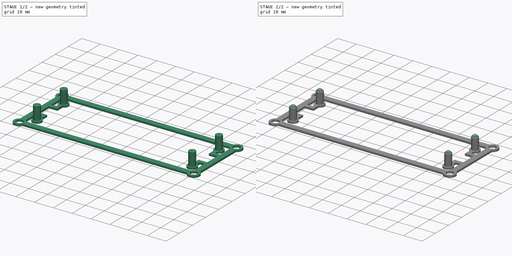
[diagram: build sequence overview — one tinted view per stage of 2, left to right]
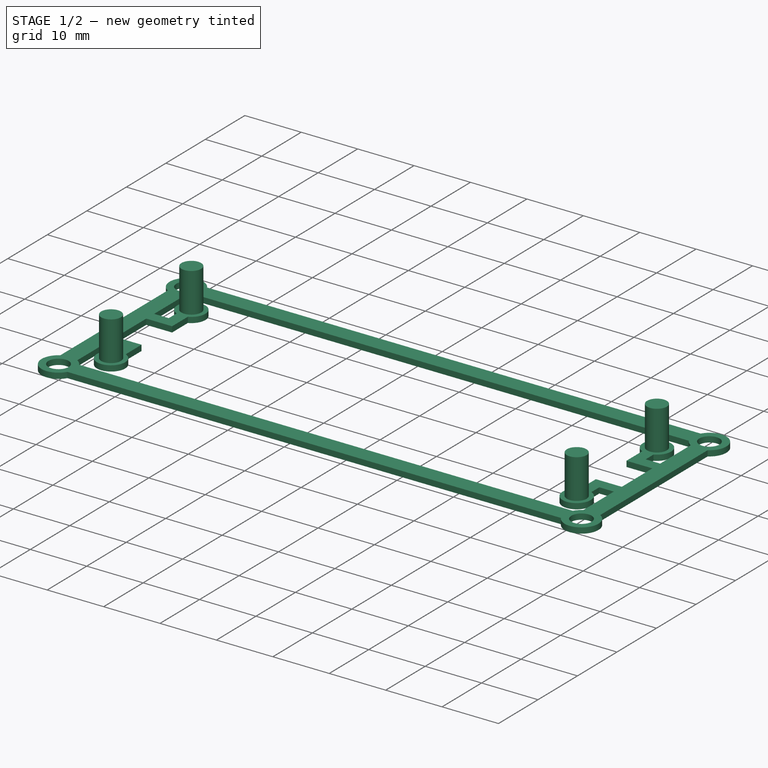
[diagram: stage 1 of 2 — iso view after this stage's code; geometry added in this stage tinted green]
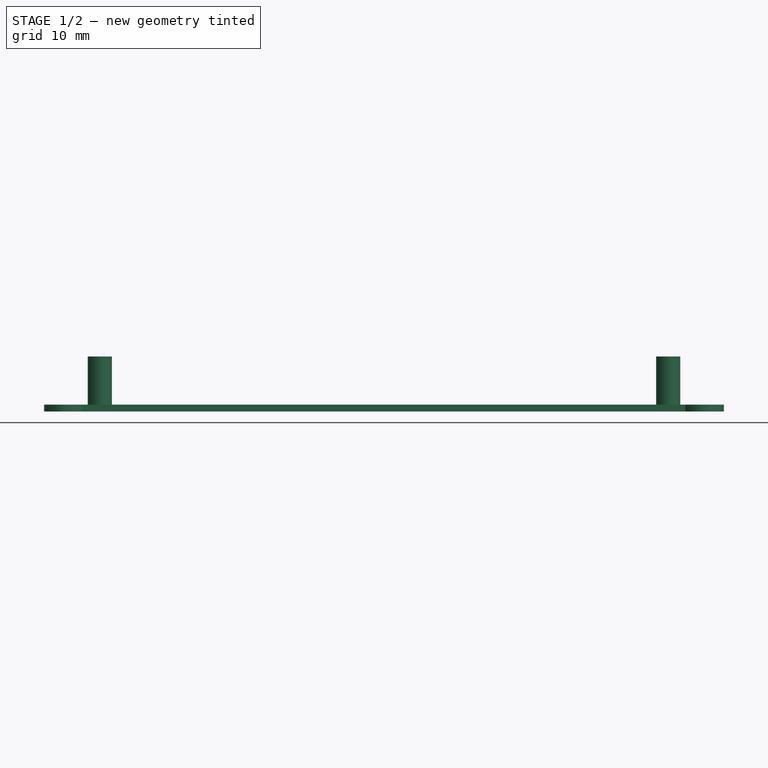
[diagram: stage 1 of 2 — front view after this stage's code; geometry added in this stage tinted green]
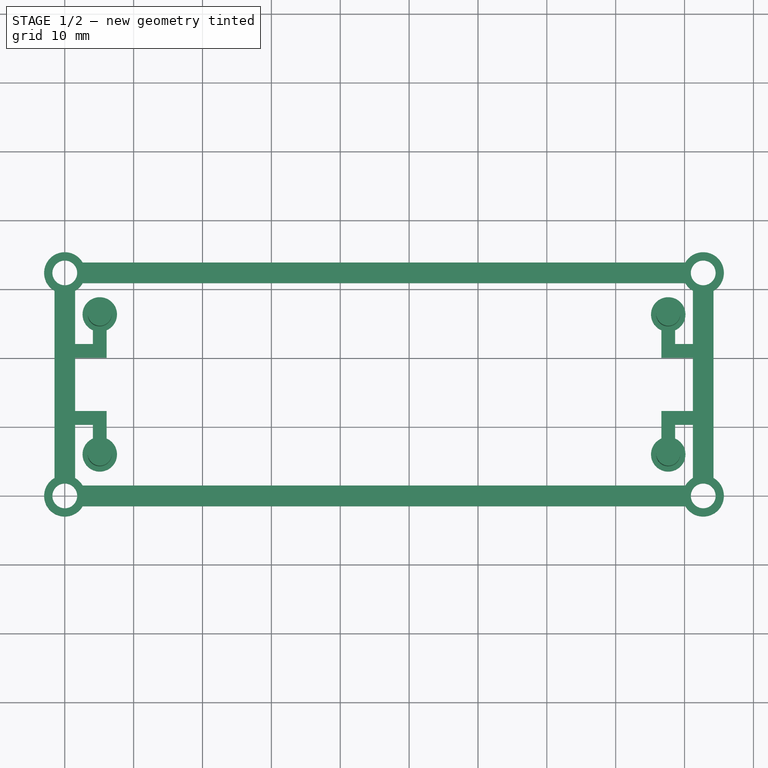
[diagram: stage 1 of 2 — top view after this stage's code; geometry added in this stage tinted green]
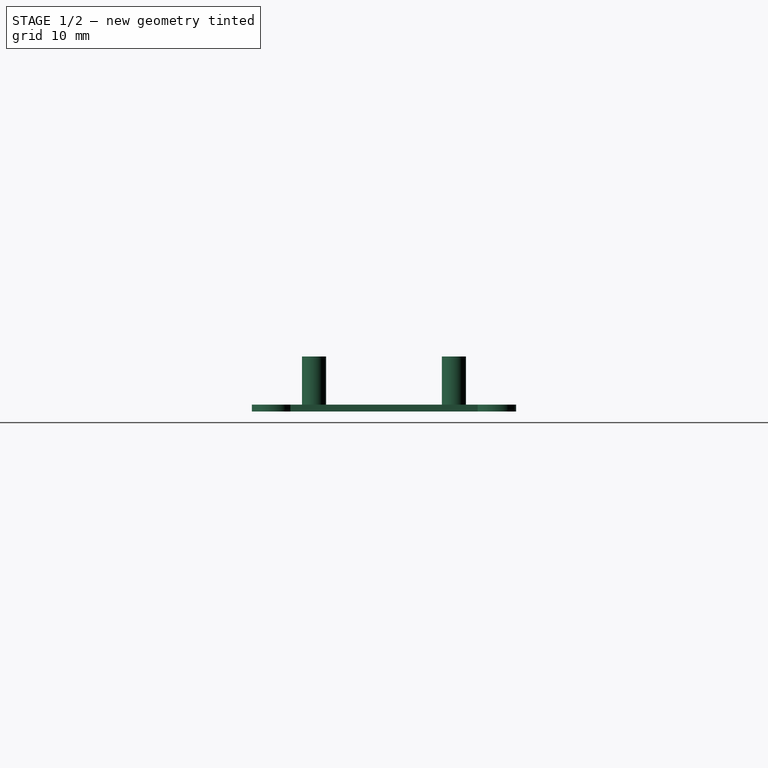
[diagram: stage 1 of 2 — right view after this stage's code; geometry added in this stage tinted green]
FCSTD DOCUMENT  (FreeCAD 0.19R24267 +99 (Git))
Label: button_rod
License: All rights reserved
LicenseURL: http://en.wikipedia.org/wiki/All_rights_reserved
objects: Sketcher::SketchObject×2, PartDesign::Pad×2, PartDesign::Chamfer×1, PartDesign::Body×1
note: 9 computed .brp shape members not serialized (recipe doc carries the construction recipe); baked Part::Feature solids carry a one-line shape summary decoded from their .brp

FEATURE [Sketcher::SketchObject] Sketch
  FullyConstrained = true
  MapMode = 5
  Support = -> [XY_Plane]
  sketch-geometry (61):
    g0: ArcOfCircle CenterX=5.08 CenterY=26.355 CenterZ=0 NormalX=0 NormalY=0 NormalZ=1 AngleXU=0 Radius=2.5 StartAngle=5.12391 EndAngle=10.5841
    g1: ArcOfCircle CenterX=87.63 CenterY=26.355 CenterZ=0 NormalX=0 NormalY=0 NormalZ=1 AngleXU=0 Radius=2.5 StartAngle=5.12391 EndAngle=10.5841
    g2: ArcOfCircle CenterX=5.08 CenterY=6.035 CenterZ=0 NormalX=0 NormalY=0 NormalZ=1 AngleXU=0 Radius=2.5 StartAngle=1.98231 EndAngle=7.44246
    g3: ArcOfCircle CenterX=87.63 CenterY=6.035 CenterZ=0 NormalX=0 NormalY=0 NormalZ=1 AngleXU=0 Radius=2.5 StartAngle=1.98231 EndAngle=7.44246
    g4: LineSegment StartX=5.08 StartY=26.355 StartZ=0 EndX=5.08 EndY=6.035 EndZ=0
    g5: LineSegment StartX=5.08 StartY=6.035 StartZ=0 EndX=87.63 EndY=6.035 EndZ=0
    g6: LineSegment StartX=87.63 StartY=6.035 StartZ=0 EndX=87.63 EndY=26.355 EndZ=0
    g7: LineSegment StartX=87.63 StartY=26.355 StartZ=0 EndX=5.08 EndY=26.355 EndZ=0
    g8: LineSegment StartX=0 StartY=32.39 StartZ=0 EndX=92.71 EndY=32.39 EndZ=0
    g9: LineSegment StartX=92.71 StartY=32.39 StartZ=0 EndX=92.71 EndY=0 EndZ=0
    g10: LineSegment StartX=92.71 StartY=0 StartZ=0 EndX=0 EndY=0 EndZ=0
    g11: LineSegment StartX=0 StartY=0 StartZ=0 EndX=0 EndY=32.39 EndZ=0
    g12: Circle CenterX=0 CenterY=32.39 CenterZ=0 NormalX=0 NormalY=0 NormalZ=1 AngleXU=0 Radius=1.8
    g13: ArcOfCircle CenterX=0 CenterY=32.39 CenterZ=0 NormalX=0 NormalY=0 NormalZ=1 AngleXU=0 Radius=3 StartAngle=5.23599 EndAngle=5.75959
    g14: Circle CenterX=92.71 CenterY=32.39 CenterZ=0 NormalX=0 NormalY=0 NormalZ=1 AngleXU=0 Radius=1.8
    g15: ArcOfCircle CenterX=92.71 CenterY=32.39 CenterZ=0 NormalX=0 NormalY=0 NormalZ=1 AngleXU=0 Radius=3 StartAngle=3.66519 EndAngle=4.18879
    g16: Circle CenterX=92.71 CenterY=0 CenterZ=0 NormalX=0 NormalY=0 NormalZ=1 AngleXU=0 Radius=1.8
    g17: ArcOfCircle CenterX=92.71 CenterY=0 CenterZ=0 NormalX=0 NormalY=0 NormalZ=1 AngleXU=0 Radius=3 StartAngle=2.0944 EndAngle=2.61799
    g18: ArcOfCircle CenterX=0 CenterY=0 CenterZ=0 NormalX=0 NormalY=0 NormalZ=1 AngleXU=0 Radius=3 StartAngle=2.0944 EndAngle=5.75959
    g19: Circle CenterX=0 CenterY=0 CenterZ=0 NormalX=0 NormalY=0 NormalZ=1 AngleXU=0 Radius=1.8
    g20: LineSegment StartX=2.59808 StartY=33.89 StartZ=0 EndX=90.1119 EndY=33.89 EndZ=0
    g21: LineSegment StartX=90.1119 StartY=30.89 StartZ=0 EndX=2.59808 EndY=30.89 EndZ=0
    g22: LineSegment StartX=2.59808 StartY=1.5 StartZ=0 EndX=90.1119 EndY=1.5 EndZ=0
    g23: LineSegment StartX=90.1119 StartY=-1.5 StartZ=0 EndX=2.59808 EndY=-1.5 EndZ=0
    g24: LineSegment StartX=1.5 StartY=29.7919 StartZ=0 EndX=1.5 EndY=22.0637 EndZ=0
    g25: LineSegment StartX=-1.5 StartY=29.7919 StartZ=0 EndX=-1.5 EndY=2.59808 EndZ=0
    g26: LineSegment StartX=91.21 StartY=29.7919 StartZ=0 EndX=91.21 EndY=22.0637 EndZ=0
    g27: LineSegment StartX=94.21 StartY=29.7919 StartZ=0 EndX=94.21 EndY=2.59808 EndZ=0
    g28: LineSegment StartX=88.63 StartY=24.0637 StartZ=0 EndX=88.63 EndY=22.0637 EndZ=0
    g29: LineSegment StartX=86.63 StartY=24.0637 StartZ=0 EndX=86.63 EndY=20.0637 EndZ=0
    g30: LineSegment StartX=88.63 StartY=22.0637 StartZ=0 EndX=91.21 EndY=22.0637 EndZ=0
    g31: LineSegment StartX=86.63 StartY=20.0637 StartZ=0 EndX=91.21 EndY=20.0637 EndZ=0
    g32: LineSegment StartX=88.63 StartY=8.32629 StartZ=0 EndX=88.63 EndY=10.3263 EndZ=0
    g33: LineSegment StartX=88.63 StartY=10.3263 StartZ=0 EndX=91.21 EndY=10.3263 EndZ=0
    g34: LineSegment StartX=86.63 StartY=8.32629 StartZ=0 EndX=86.63 EndY=12.3263 EndZ=0
    g35: LineSegment StartX=86.63 StartY=12.3263 StartZ=0 EndX=91.21 EndY=12.3263 EndZ=0
    g36: LineSegment StartX=4.08 StartY=24.0637 StartZ=0 EndX=4.08 EndY=22.0637 EndZ=0
    g37: LineSegment StartX=4.08 StartY=22.0637 StartZ=0 EndX=1.5 EndY=22.0637 EndZ=0
    g38: LineSegment StartX=6.08 StartY=24.0637 StartZ=0 EndX=6.08 EndY=20.0637 EndZ=0
    g39: LineSegment StartX=6.08 StartY=20.0637 StartZ=0 EndX=1.5 EndY=20.0637 EndZ=0
    g40: LineSegment StartX=6.08 StartY=8.32629 StartZ=0 EndX=6.08 EndY=12.3263 EndZ=0
    g41: LineSegment StartX=6.08 StartY=12.3263 StartZ=0 EndX=1.5 EndY=12.3263 EndZ=0
    g42: LineSegment StartX=4.08 StartY=8.32629 StartZ=0 EndX=4.08 EndY=10.3263 EndZ=0
    g43: LineSegment StartX=4.08 StartY=10.3263 StartZ=0 EndX=1.5 EndY=10.3263 EndZ=0
    g44: ArcOfCircle CenterX=0 CenterY=32.39 CenterZ=0 NormalX=0 NormalY=0 NormalZ=1 AngleXU=0 Radius=3 StartAngle=0.523599 EndAngle=4.18879
    g45: ArcOfCircle CenterX=92.71 CenterY=32.39 CenterZ=0 NormalX=0 NormalY=0 NormalZ=1 AngleXU=0 Radius=3 StartAngle=5.23599 EndAngle=8.90118
    g46: ArcOfCircle CenterX=92.71 CenterY=0 CenterZ=0 NormalX=0 NormalY=0 NormalZ=1 AngleXU=0 Radius=3 StartAngle=3.66519 EndAngle=7.33038
    g47: ArcOfCircle CenterX=0 CenterY=0 CenterZ=0 NormalX=0 NormalY=0 NormalZ=1 AngleXU=0 Radius=3 StartAngle=0.523599 EndAngle=1.0472
    g48: LineSegment StartX=91.21 StartY=20.0637 StartZ=0 EndX=91.21 EndY=12.3263 EndZ=0
    g49: LineSegment StartX=91.21 StartY=10.3263 StartZ=0 EndX=91.21 EndY=2.59808 EndZ=0
    g50: LineSegment StartX=1.5 StartY=10.3263 StartZ=0 EndX=1.5 EndY=2.59808 EndZ=0
    g51: LineSegment StartX=1.5 StartY=20.0637 StartZ=0 EndX=1.5 EndY=12.3263 EndZ=0
    g52: LineSegment StartX=1.5 StartY=29.7919 StartZ=0 EndX=1.5 EndY=2.59808 EndZ=0
    g53: LineSegment StartX=-1.5 StartY=29.7919 StartZ=0 EndX=1.5 EndY=29.7919 EndZ=0
    g54: LineSegment StartX=2.59808 StartY=33.89 StartZ=0 EndX=2.59808 EndY=30.89 EndZ=0
    g55: LineSegment StartX=90.1119 StartY=33.89 StartZ=0 EndX=90.1119 EndY=30.89 EndZ=0
    g56: LineSegment StartX=91.21 StartY=29.7919 StartZ=0 EndX=94.21 EndY=29.7919 EndZ=0
    g57: LineSegment StartX=91.21 StartY=2.59808 StartZ=0 EndX=94.21 EndY=2.59808 EndZ=0
    g58: LineSegment StartX=90.1119 StartY=1.5 StartZ=0 EndX=90.1119 EndY=-1.5 EndZ=0
    g59: LineSegment StartX=2.59808 StartY=1.5 StartZ=0 EndX=2.59808 EndY=-1.5 EndZ=0
    g60: LineSegment StartX=1.5 StartY=2.59808 StartZ=0 EndX=-1.5 EndY=2.59808 EndZ=0
  constraints (171):
    c: Coincident(g4,g0)
    c: Coincident(g4,g2)
    c: Vertical(g4)
    c: Coincident(g5,g3)
    c: Horizontal(g5)
    c: Coincident(g6,g3)
    c: Coincident(g6,g1)
    c: Vertical(g6)
    c: Coincident(g7,g1)
    c: Coincident(g7,g0)
    c: Horizontal(g7)
    c: Coincident(g2,g5)
    c: Equal(g0,g1)
    c: Equal(g1,g3)
    c: Equal(g3,g2)
    c: Radius(g0) = 2.5
    c: DistanceY(g4,g4) = 20.32
    c: DistanceX(g2,g3) = 82.55
    c: Coincident(g8,g9)
    c: Coincident(g9,g10)
    c: Coincident(g10,g11)
    c: Coincident(g11,g8)
    c: Horizontal(g8)
    c: Horizontal(g10)
    c: Vertical(g9)
    c: Vertical(g11)
    c: Coincident(g12,g8)
    c: Coincident(g13,g12)
    c: Coincident(g14,g8)
    c: Coincident(g15,g14)
    c: Coincident(g16,g9)
    c: Coincident(g17,g16)
    c: Coincident(g18,g10)
    c: Coincident(g19,g18)
    c: Equal(g13,g15)
    c: Equal(g15,g17)
    c: Equal(g12,g14)
    c: Equal(g14,g16)
    c: Equal(g16,g19)
    c: Radius(g13) = 3
    c: Radius(g12) = 1.8
    c: Equal(g18,g13)
    c: Coincident(g18,g-1)
    c: DistanceX(g10,g10) = 92.71
    c: DistanceY(g11,g11) = 32.39
    c: DistanceX(g18,g2) = 5.08
    c: DistanceY(g18,g2) = 6.035
    c: PointOnObject(g20,g13)
    c: Horizontal(g20)
    c: Horizontal(g21)
    c: Horizontal(g22)
    c: PointOnObject(g23,g17)
    c: Horizontal(g23)
    c: Vertical(g24)
    c: Vertical(g25)
    c: Vertical(g26)
    c: PointOnObject(g27,g15)
    c: Vertical(g27)
    c: DistanceY(g21,g20) = 3
    c: DistanceX(g49,g27) = 3
    c: Equal(g21,g20)
    c: Equal(g20,g22)
    c: Equal(g22,g23)
    c: Vertical(g28)
    c: Vertical(g29)
    c: Coincident(g30,g28)
    c: Horizontal(g30)
    c: Coincident(g31,g29)
    c: Horizontal(g31)
    c: Vertical(g32)
    c: Coincident(g33,g32)
    c: PointOnObject(g33,g26)
    c: Horizontal(g33)
    c: Vertical(g34)
    c: Coincident(g35,g34)
    c: PointOnObject(g35,g26)
    c: Horizontal(g35)
    c: Vertical(g36)
    c: Coincident(g37,g36)
    c: Horizontal(g37)
    c: Vertical(g38)
    c: Coincident(g39,g38)
    c: Horizontal(g39)
    c: Vertical(g40)
    c: Coincident(g41,g40)
    c: Horizontal(g41)
    c: Vertical(g42)
    c: Coincident(g43,g42)
    c: Horizontal(g43)
    c: DistanceY(g31,g30) = 2
    c: DistanceX(g29,g28) = 2
    c: DistanceX(g29,g1) = 1
    c: DistanceY(g29,g29) = 4
    c: Equal(g28,g32)
    c: Equal(g32,g42)
    c: Equal(g42,g36)
    c: Equal(g38,g40)
    c: Equal(g40,g34)
    c: Equal(g34,g29)
    c: Equal(g37,g43)
    c: Equal(g43,g33)
    c: Equal(g33,g30)
    c: Equal(g39,g41)
    c: Equal(g41,g35)
    c: Equal(g35,g31)
    c: Coincident(g44,g25)
    c: Coincident(g13,g24)
    c: Equal(g13,g44)
    c: Coincident(g13,g21)
    c: Coincident(g13,g44)
    c: PointOnObject(g44,g20)
    c: Coincident(g45,g20)
    c: Coincident(g15,g21)
    c: Equal(g15,g45)
    c: Coincident(g15,g26)
    c: Coincident(g15,g45)
    c: PointOnObject(g45,g27)
    c: Coincident(g17,g49)
    c: Coincident(g46,g27)
    c: Equal(g17,g46)
    c: Coincident(g17,g22)
    c: Coincident(g17,g46)
    c: PointOnObject(g46,g23)
    c: Coincident(g47,g50)
    c: Coincident(g18,g25)
    c: Equal(g18,g47)
    c: Coincident(g47,g22)
    c: Coincident(g18,g47)
    c: Coincident(g18,g23)
    c: Coincident(g26,g30)
    c: Coincident(g48,g31)
    c: Tangent(g26,g48)
    c: PointOnObject(g48,g35)
    c: PointOnObject(g49,g33)
    c: Tangent(g48,g49)
    c: Coincident(g51,g41)
    c: Coincident(g50,g43)
    c: Tangent(g24,g50)
    c: Coincident(g24,g37)
    c: Coincident(g51,g39)
    c: Tangent(g24,g51)
    c: Coincident(g52,g13)
    c: Coincident(g52,g47)
    c: Equal(g52,g25)
    c: Coincident(g53,g25)
    c: Coincident(g53,g13)
    c: Coincident(g54,g20)
    c: Coincident(g54,g13)
    c: Coincident(g55,g20)
    c: PointOnObject(g55,g21)
    c: Vertical(g55)
    c: Coincident(g56,g15)
    c: Coincident(g56,g27)
    c: Horizontal(g56)
    c: Coincident(g57,g17)
    c: Coincident(g57,g27)
    c: Coincident(g58,g17)
    c: Coincident(g58,g23)
    c: Coincident(g59,g22)
    c: Coincident(g59,g18)
    c: Coincident(g60,g47)
    c: Coincident(g60,g18)
    c: DistanceX(g53,g53) = 3
    c: Coincident(g0,g38)
    c: Coincident(g0,g36)
    c: Coincident(g2,g42)
    c: Coincident(g2,g40)
    c: Coincident(g3,g32)
    c: Coincident(g3,g34)
    c: Coincident(g1,g28)
    c: Coincident(g1,g29)
FEATURE [PartDesign::Pad] Pad
  Direction = (1,1,1)
  Length = 1
  Length2 = 100
  Profile = -> Sketch
  Type = 0
FEATURE [Sketcher::SketchObject] Sketch001
  FullyConstrained = true
  MapMode = 5
  Placement = pos=(0,0,1) rot=(0,0,1;0rad)
  Support = -> [Pad]
  sketch-geometry (8):
    g0: Circle CenterX=5.08 CenterY=26.355 CenterZ=0 NormalX=0 NormalY=0 NormalZ=1 AngleXU=0 Radius=1.75
    g1: Circle CenterX=87.63 CenterY=26.355 CenterZ=0 NormalX=0 NormalY=0 NormalZ=1 AngleXU=0 Radius=1.75
    g2: Circle CenterX=87.63 CenterY=6.035 CenterZ=0 NormalX=0 NormalY=0 NormalZ=1 AngleXU=0 Radius=1.75
    g3: Circle CenterX=5.08 CenterY=6.035 CenterZ=0 NormalX=0 NormalY=0 NormalZ=1 AngleXU=0 Radius=1.75
    g4: LineSegment StartX=5.08 StartY=26.355 StartZ=0 EndX=5.08 EndY=6.035 EndZ=0
    g5: LineSegment StartX=5.08 StartY=6.035 StartZ=0 EndX=87.63 EndY=6.035 EndZ=0
    g6: LineSegment StartX=87.63 StartY=6.035 StartZ=0 EndX=87.63 EndY=26.355 EndZ=0
    g7: LineSegment StartX=87.63 StartY=26.355 StartZ=0 EndX=5.08 EndY=26.355 EndZ=0
  constraints (20):
    c: Coincident(g4,g0)
    c: Coincident(g4,g3)
    c: Vertical(g4)
    c: Coincident(g5,g3)
    c: Coincident(g5,g2)
    c: Horizontal(g5)
    c: Coincident(g6,g2)
    c: Coincident(g6,g1)
    c: Vertical(g6)
    c: Coincident(g7,g1)
    c: Coincident(g7,g0)
    c: Horizontal(g7)
    c: Equal(g0,g3)
    c: Equal(g3,g1)
    c: Equal(g1,g2)
    c: Radius(g0) = 1.75
    c: DistanceY(g-1,g3) = 6.035
    c: DistanceX(g5,g5) = 82.55
    c: DistanceY(g4,g4) = 20.32
    c: DistanceX(g-1,g3) = 5.08
FEATURE [PartDesign::Pad] Pad001
  BaseFeature = -> Pad
  Direction = (1,1,1)
  Length = 7
  Length2 = 100
  Profile = -> Sketch001
  Type = 0
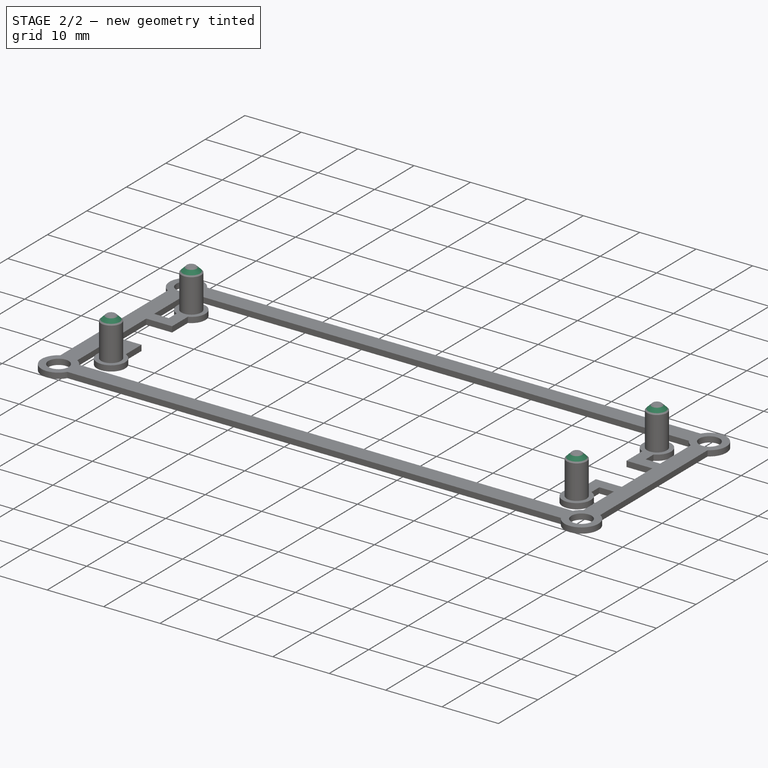
[diagram: stage 2 of 2 — iso view after this stage's code; geometry added in this stage tinted green]
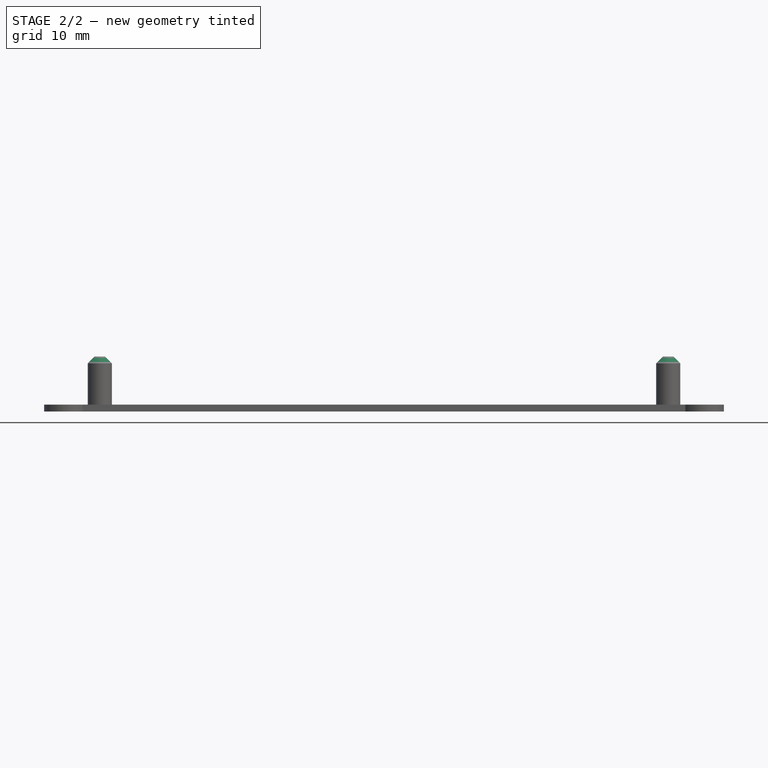
[diagram: stage 2 of 2 — front view after this stage's code; geometry added in this stage tinted green]
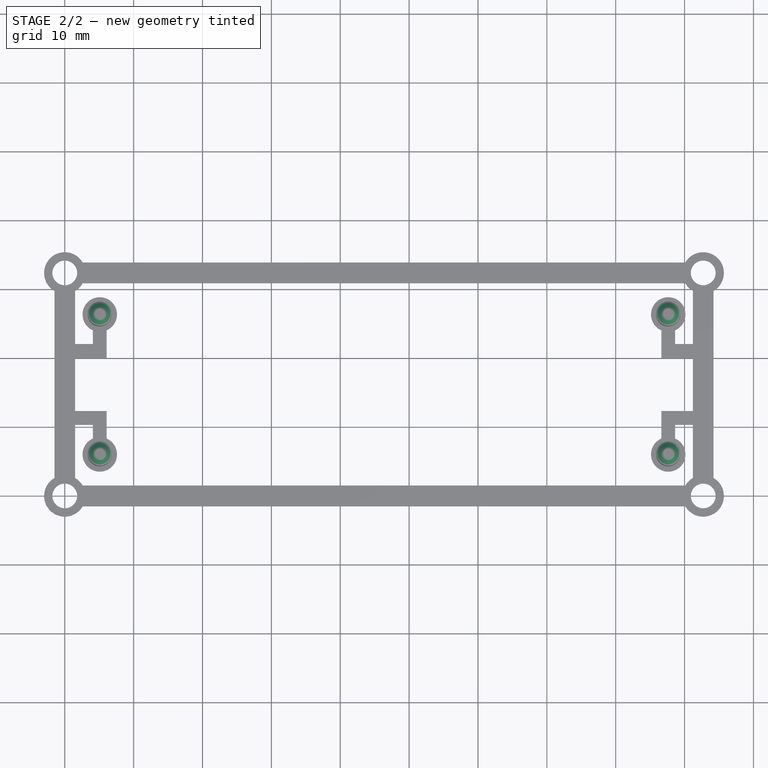
[diagram: stage 2 of 2 — top view after this stage's code; geometry added in this stage tinted green]
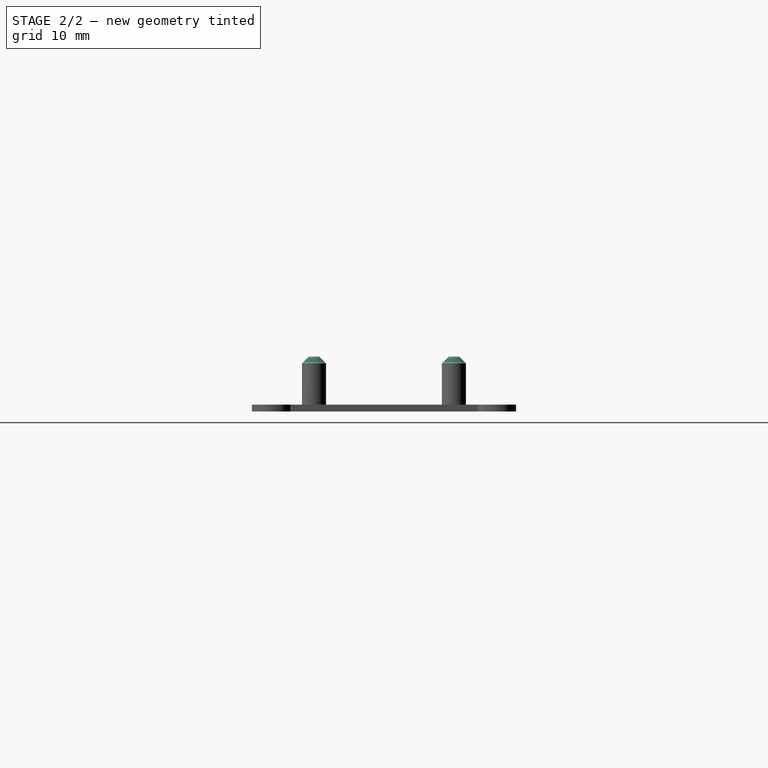
[diagram: stage 2 of 2 — right view after this stage's code; geometry added in this stage tinted green]
FEATURE [PartDesign::Chamfer] Chamfer
  Angle = 45
  Base = -> Pad001 [Edge142,Edge138,Edge144,Edge140]
  BaseFeature = -> Pad001
  ChamferType = 0
  FlipDirection = false
  Size = 1
  Size2 = 1
  SupportTransform = false
FEATURE [PartDesign::Body] Body
  Group = -> [Sketch,Pad,Sketch001,Pad001,Chamfer]
  Origin = -> Origin
  Tip = -> Chamfer
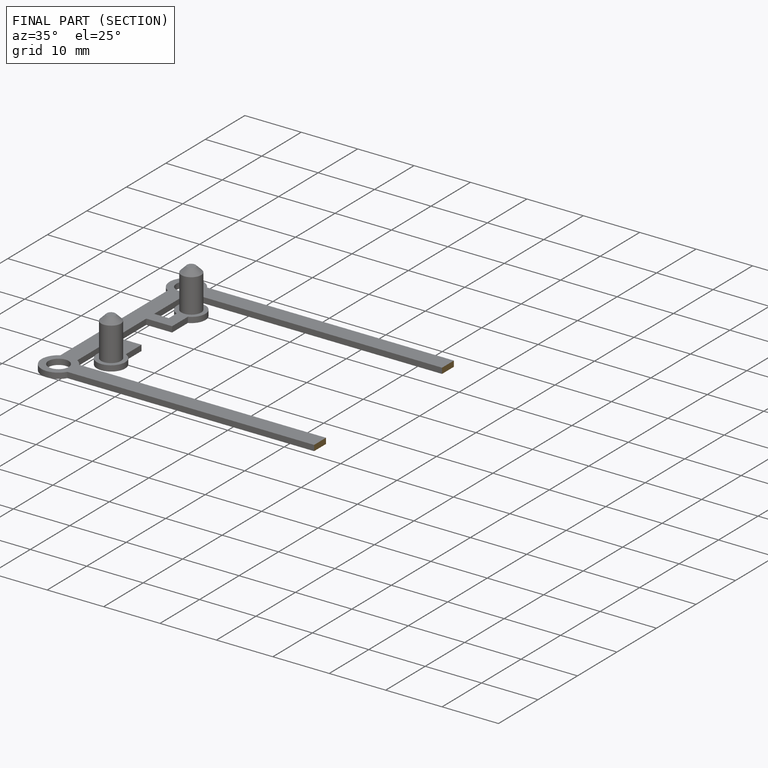
[diagram: finished part — half-section view (interior)]
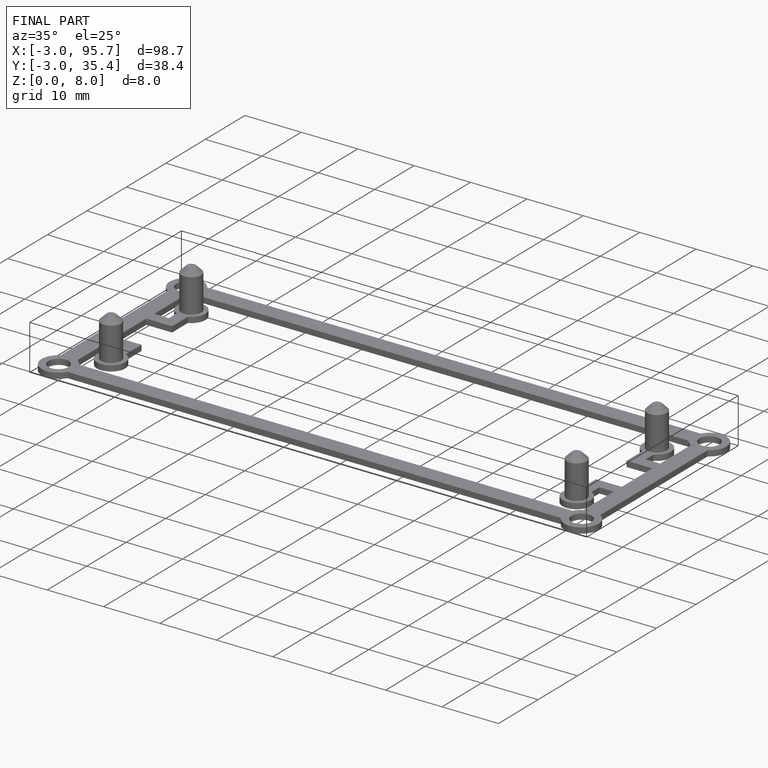
[diagram: finished part — iso view with bounding-box wireframe]
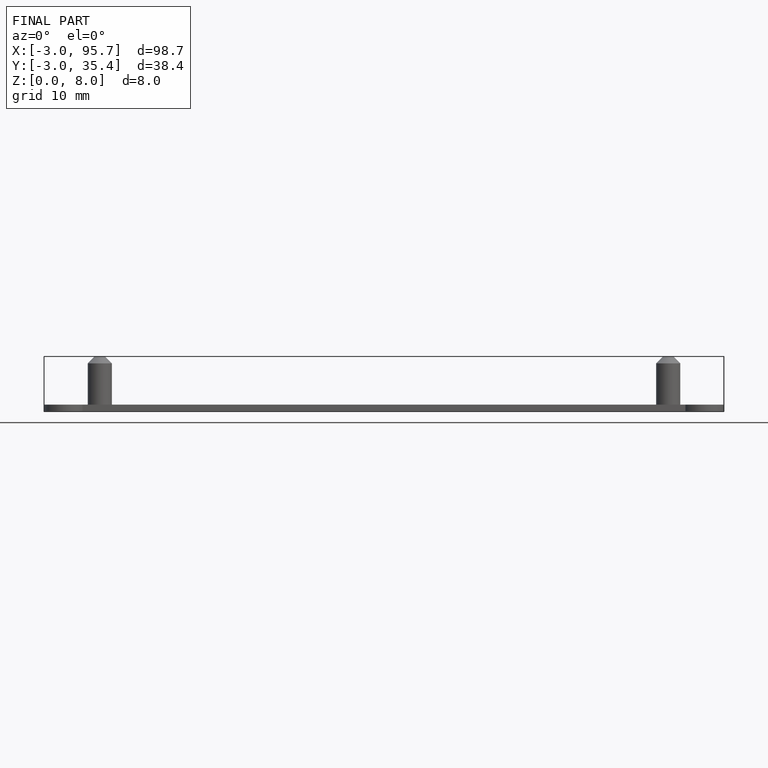
[diagram: finished part — front view with bounding-box wireframe]
